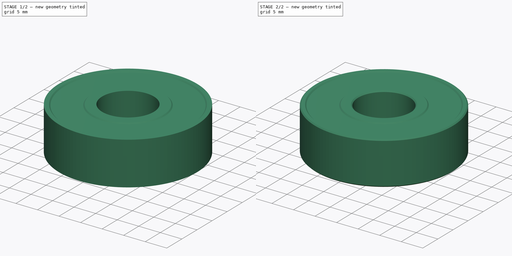
[diagram: build sequence overview — one tinted view per stage of 2, left to right]
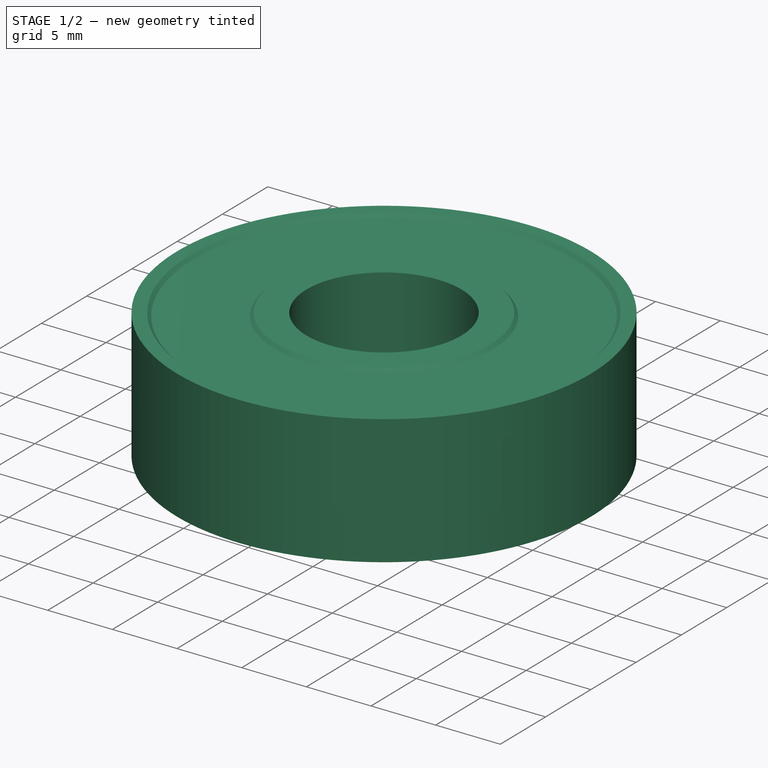
[diagram: stage 1 of 2 — iso view after this stage's code; geometry added in this stage tinted green]
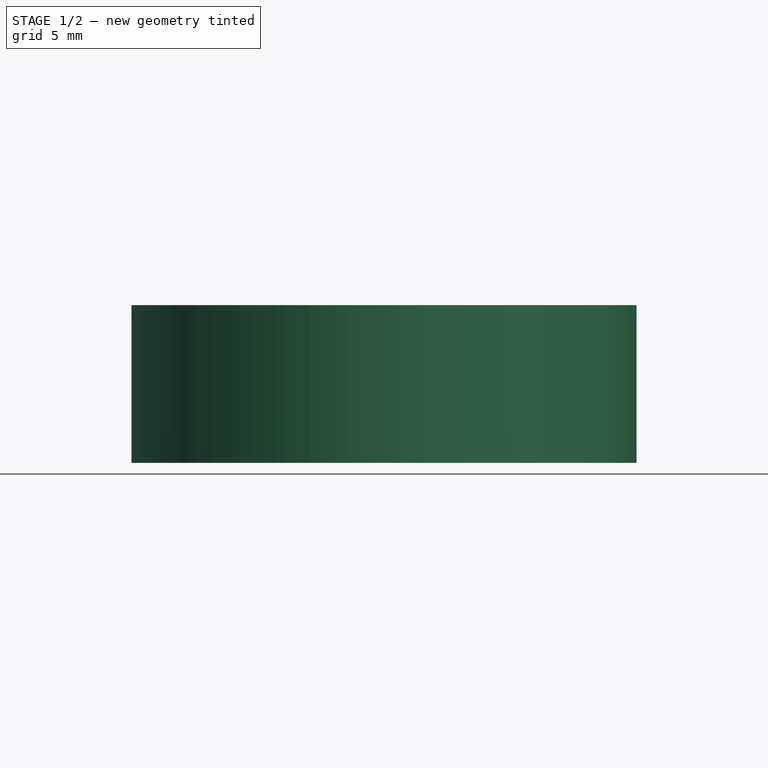
[diagram: stage 1 of 2 — front view after this stage's code; geometry added in this stage tinted green]
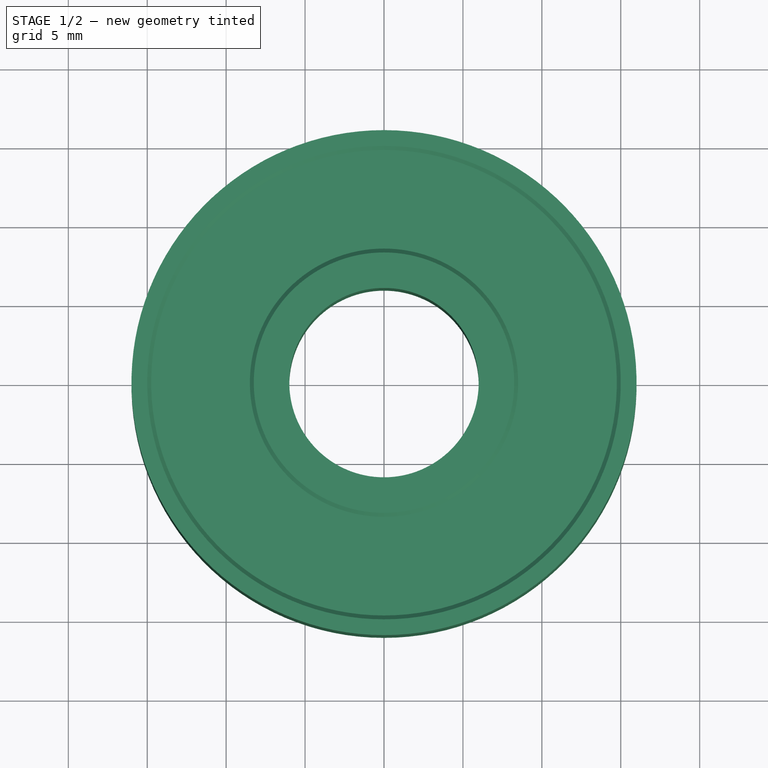
[diagram: stage 1 of 2 — top view after this stage's code; geometry added in this stage tinted green]
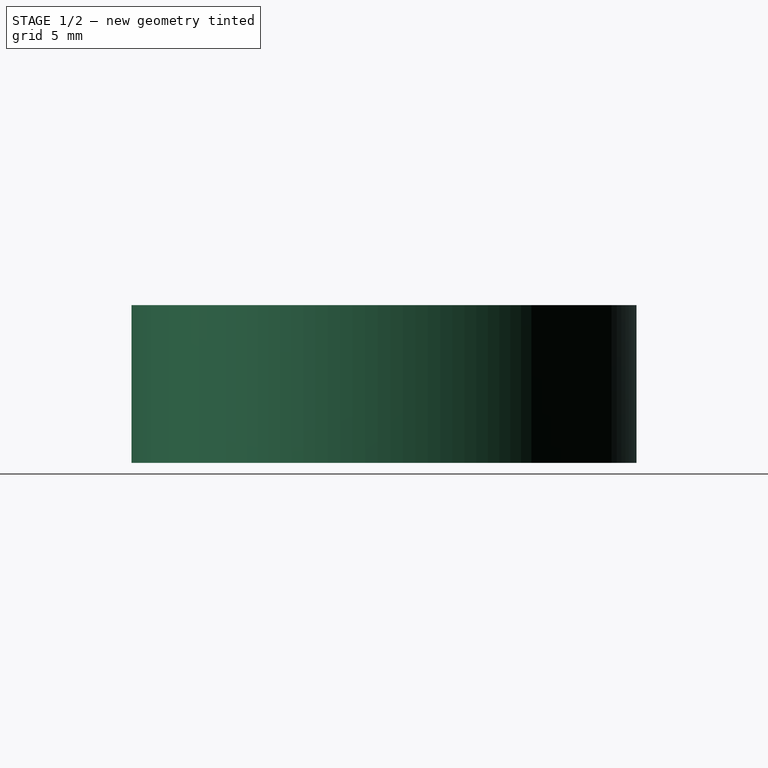
[diagram: stage 1 of 2 — right view after this stage's code; geometry added in this stage tinted green]
FCSTD DOCUMENT  (FreeCAD 0.21R33694 (Git))
Label: 6201-2RS_Ball_Bearing
License: All rights reserved
LicenseURL: http://en.wikipedia.org/wiki/All_rights_reserved
objects: Sketcher::SketchObject×1, PartDesign::Revolution×1, PartDesign::Chamfer×1, PartDesign::Body×1
note: 6 computed .brp shape members not serialized (recipe doc carries the construction recipe); baked Part::Feature solids carry a one-line shape summary decoded from their .brp

FEATURE [Sketcher::SketchObject] Sketch
  FullyConstrained = true
  MapMode = 5
  Placement = pos=(0,0,0) rot=(0.57735,0.57735,0.57735;2.0944rad)
  Support = -> [YZ_Plane]
  sketch-geometry (12):
    g0: LineSegment StartX=6 StartY=5 StartZ=0 EndX=6 EndY=-5 EndZ=0
    g1: LineSegment StartX=6 StartY=5 StartZ=0 EndX=8.25 EndY=5 EndZ=0
    g2: LineSegment StartX=8.25 StartY=5 StartZ=0 EndX=8.5 EndY=4.75 EndZ=0
    g3: LineSegment StartX=8.5 StartY=4.75 StartZ=0 EndX=14.75 EndY=4.75 EndZ=0
    g4: LineSegment StartX=14.75 StartY=4.75 StartZ=0 EndX=15 EndY=5 EndZ=0
    g5: LineSegment StartX=15 StartY=5 StartZ=0 EndX=16 EndY=5 EndZ=0
    g6: LineSegment StartX=16 StartY=5 StartZ=0 EndX=16 EndY=-5 EndZ=0
    g7: LineSegment StartX=6 StartY=-5 StartZ=0 EndX=8.25 EndY=-5 EndZ=0
    g8: LineSegment StartX=8.25 StartY=-5 StartZ=0 EndX=8.5 EndY=-4.75 EndZ=0
    g9: LineSegment StartX=8.5 StartY=-4.75 StartZ=0 EndX=14.75 EndY=-4.75 EndZ=0
    g10: LineSegment StartX=14.75 StartY=-4.75 StartZ=0 EndX=15 EndY=-5 EndZ=0
    g11: LineSegment StartX=15 StartY=-5 StartZ=0 EndX=16 EndY=-5 EndZ=0
  constraints (35):
    c: Symmetric(g0,g0,g-1)
    c: DistanceY(g0,g0) = 10
    c: Coincident(g1,g0)
    c: Horizontal(g1)
    c: Coincident(g2,g1)
    c: Coincident(g3,g2)
    c: Horizontal(g3)
    c: Coincident(g4,g3)
    c: Coincident(g5,g4)
    c: Horizontal(g5)
    c: Coincident(g6,g5)
    c: Vertical(g6)
    c: Angle(g1,g2) = 2.35619
    c: DistanceY(g3,g5) = 0.25
    c: Horizontal(g4,g1)
    c: DistanceX(g-1,g0) = 6
    c: DistanceX(g-1,g6) = 16
    c: DistanceX(g1,g1) = 2.25
    c: DistanceX(g5,g5) = 1
    c: Equal(g0,g6)
    c: Coincident(g7,g0)
    c: Horizontal(g7)
    c: Equal(g1,g7)
    c: Coincident(g8,g7)
    c: Coincident(g9,g8)
    c: Horizontal(g9)
    c: Coincident(g10,g9)
    c: Coincident(g11,g10)
    c: Coincident(g11,g6)
    c: Horizontal(g11)
    c: Angle(g4,g5) = 2.35619
    c: Angle(g8,g7) = 2.35619
    c: Angle(g11,g10) = 2.35619
    c: DistanceY(g6,g9) = 0.25
    c: Equal(g11,g5)
FEATURE [PartDesign::Revolution] Revolution
  Angle = 360
  Axis = (-2e-16,3e-16,1)
  Base = (0,0,0)
  Placement = pos=(0,0,0) rot=(1,1,1;2.0944rad)
  Profile = -> Sketch
  ReferenceAxis = -> Sketch [V_Axis]
  Reversed = true
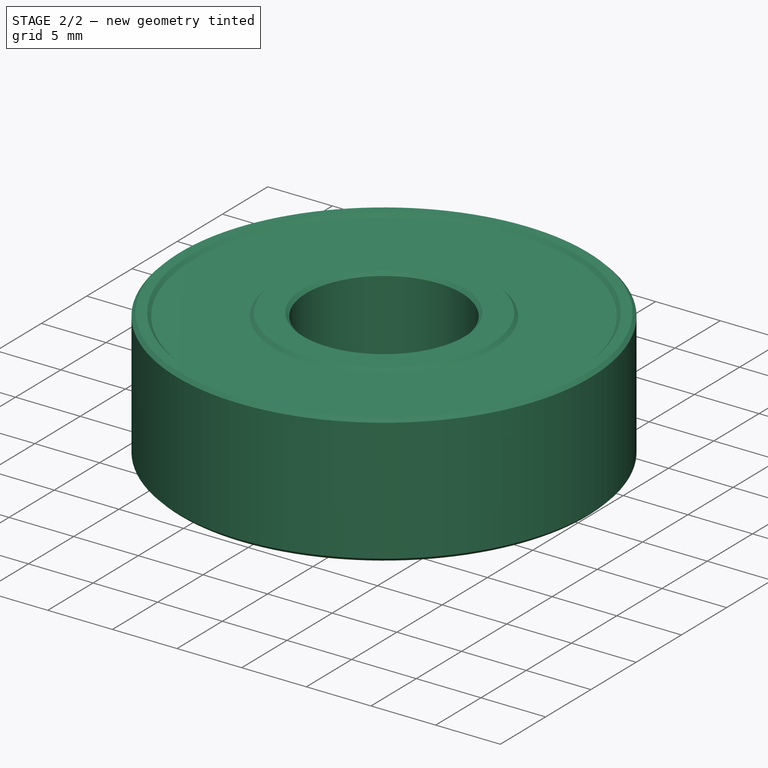
[diagram: stage 2 of 2 — iso view after this stage's code; geometry added in this stage tinted green]
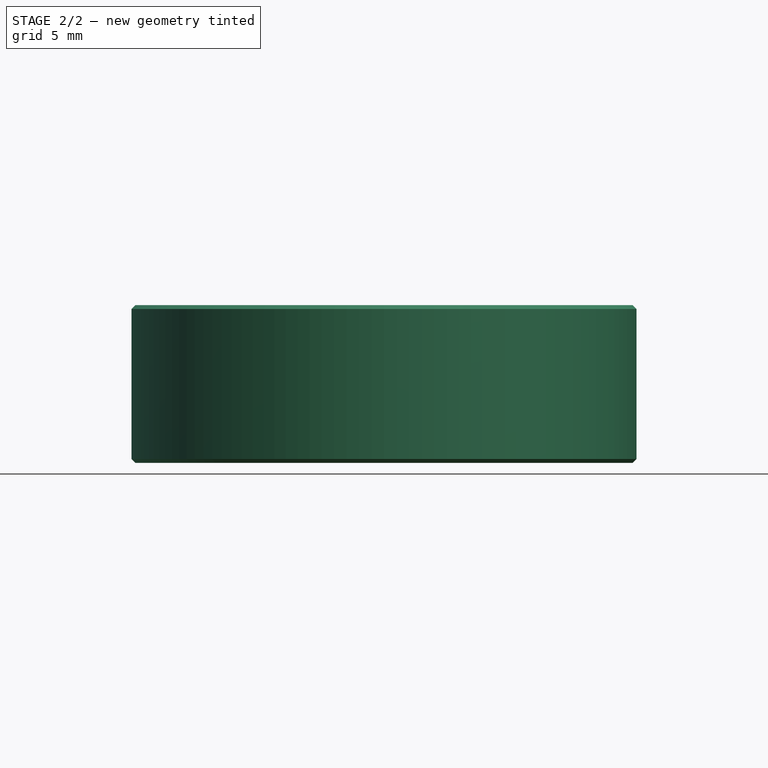
[diagram: stage 2 of 2 — front view after this stage's code; geometry added in this stage tinted green]
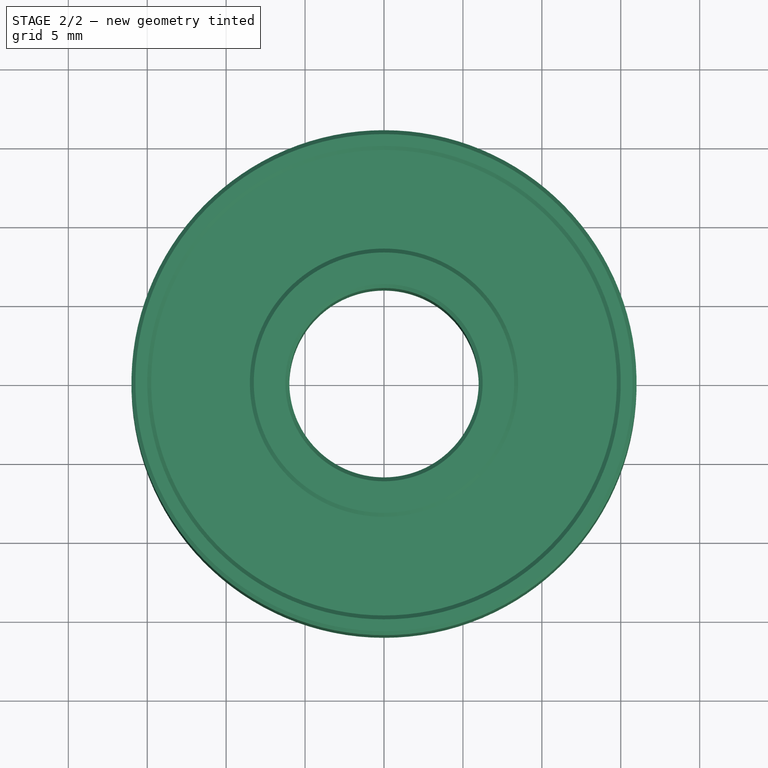
[diagram: stage 2 of 2 — top view after this stage's code; geometry added in this stage tinted green]
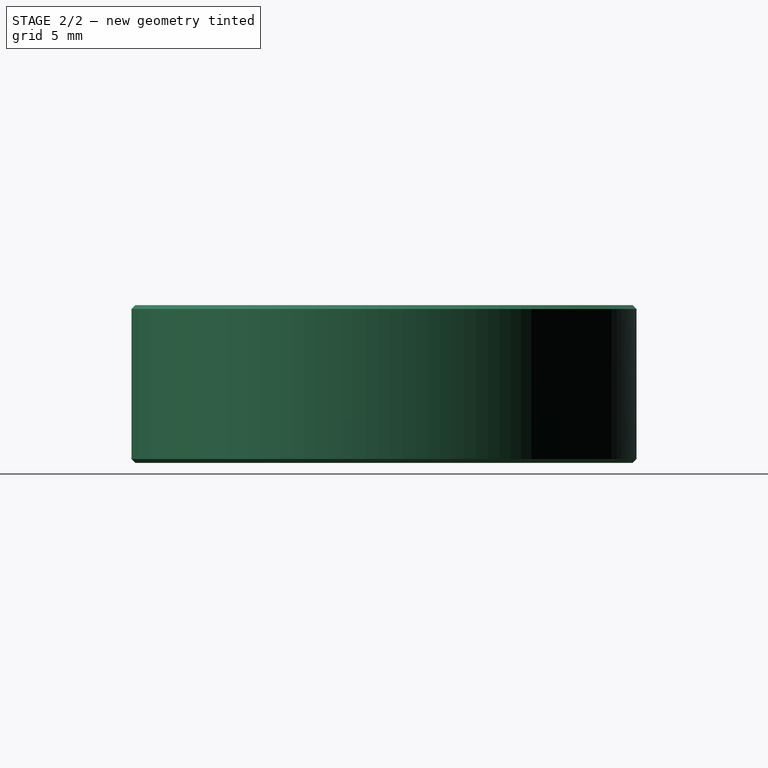
[diagram: stage 2 of 2 — right view after this stage's code; geometry added in this stage tinted green]
FEATURE [PartDesign::Chamfer] Chamfer
  Angle = 45
  Base = -> Revolution [Edge11,Edge1,Edge10,Edge2]
  BaseFeature = -> Revolution
  ChamferType = 0
  FlipDirection = false
  Placement = pos=(0,0,0) rot=(1,1,1;2.0944rad)
  Size = 0.25
  Size2 = 1
  SupportTransform = false
  UseAllEdges = false
FEATURE [PartDesign::Body] Body
  Group = -> [Sketch,Revolution,Chamfer]
  Origin = -> Origin
  Tip = -> Chamfer
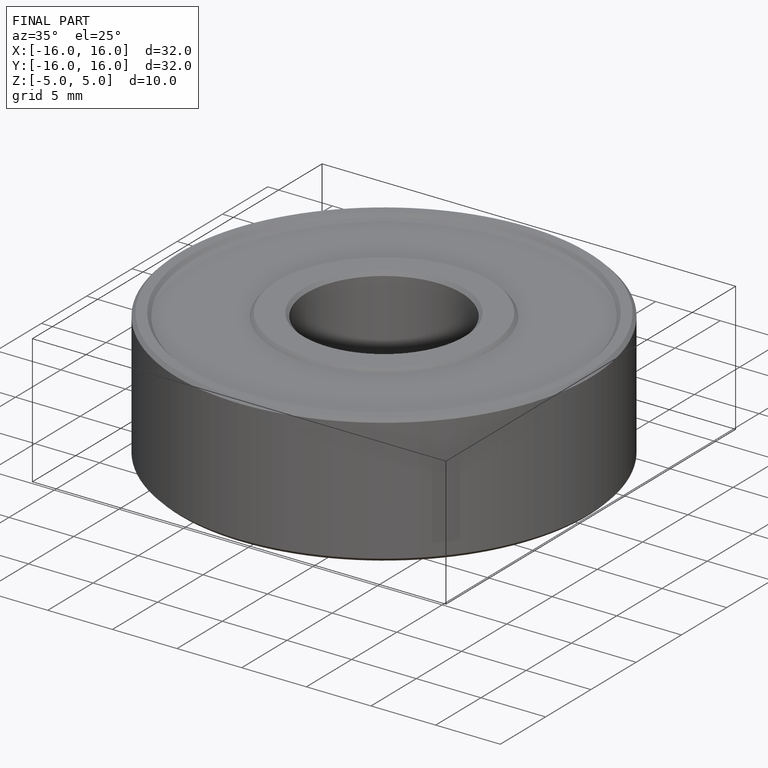
[diagram: finished part — iso view with bounding-box wireframe]
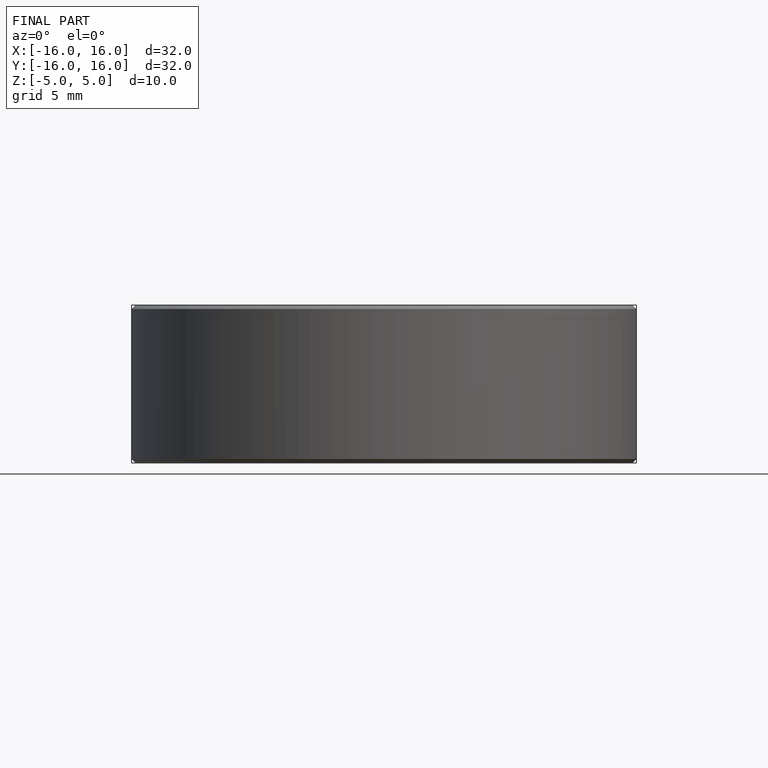
[diagram: finished part — front view with bounding-box wireframe]
